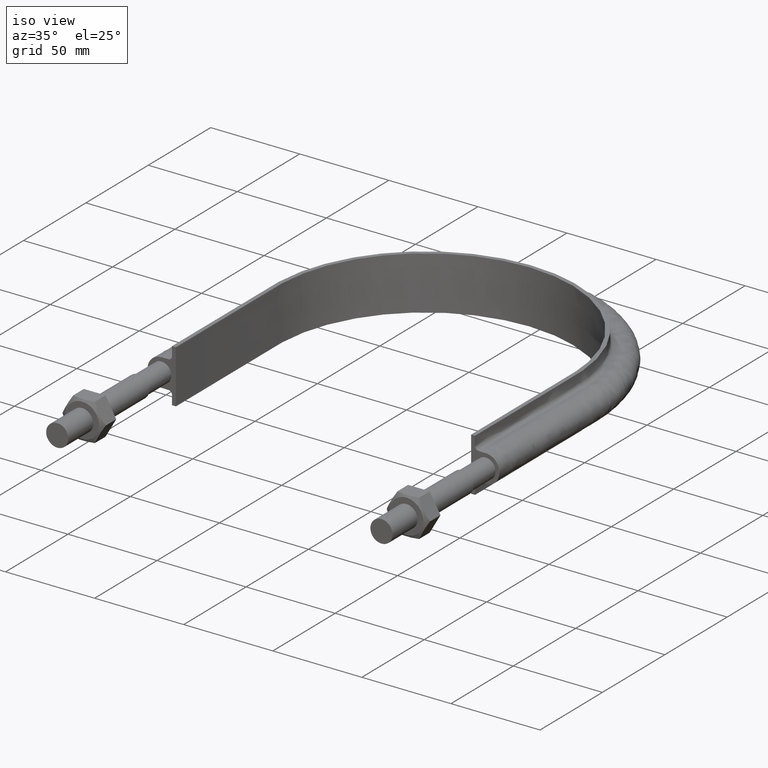
[diagram: clean part render]
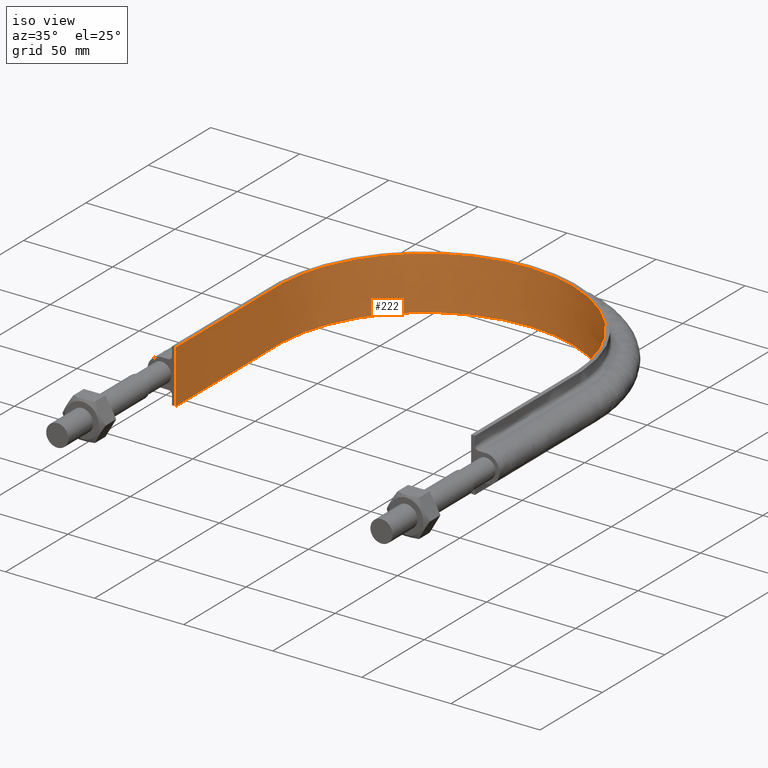
[diagram: same view with one face highlighted and labeled with its STEP entity id]
A machine part, iso view. The second image highlights one B-rep face of the part: STEP entity #222.
In plain terms, the highlighted face is a SurfaceOfExtrusion surface.
Its self-contained STEP definition (entity closure, byte-faithful):
#222 = ADVANCED_FACE( '', ( #268 ), #269, .T. );
#268 = FACE_OUTER_BOUND( '', #556, .T. );
#269 = SURFACE_OF_LINEAR_EXTRUSION( '', #557, #558 );
#556 = EDGE_LOOP( '', ( #1380, #1381, #1382, #1383 ) );
#557 = B_SPLINE_CURVE_WITH_KNOTS( '', 3, ( #1384, #1385, #1386, #1387, #1388, #1389, #1390, #1391, #1392, #1393, #1394, #1395, #1396, #1397, #1398, #1399, #1400 ), .UNSPECIFIED., .F., .F., ( 4, 3, 1, 1, 1, 1, 1, 1, 1, 3, 4 ), ( -10.0000000000000, -9.00000000000000, -8.00000000000000, -7.00000000000000, -6.00000000000000, -5.00000000000000, -4.00000000000000, -3.00000000000000, -2.00000000000000, -1.00000000000000, 0.000000000000000 ), .UNSPECIFIED. );
#558 = VECTOR( '', #1401, 1000.00000000000 );
#1380 = ORIENTED_EDGE( '', *, *, #1658, .F. );
#1381 = ORIENTED_EDGE( '', *, *, #1653, .F. );
#1382 = ORIENTED_EDGE( '', *, *, #1662, .T. );
#1383 = ORIENTED_EDGE( '', *, *, #1663, .T. );
#1384 = CARTESIAN_POINT( '', ( -82.8500000000000, 83.5000000000001, -278.469308654335 ) );
#1385 = CARTESIAN_POINT( '', ( -82.8500000000000, 110.716666666667, -278.469308654335 ) );
#1386 = CARTESIAN_POINT( '', ( -82.8500000000000, 137.933333333333, -278.469308654335 ) );
#1387 = CARTESIAN_POINT( '', ( -82.8500000000000, 165.150000000000, -278.469308654335 ) );
#1388 = CARTESIAN_POINT( '', ( -82.8500000000000, 175.979512005492, -278.469308654335 ) );
#1389 = CARTESIAN_POINT( '', ( -78.5361555605724, 197.687272457852, -278.469308654335 ) );
#1390 = CARTESIAN_POINT( '', ( -60.1089711493570, 225.257212617967, -278.469308654335 ) );
#1391 = CARTESIAN_POINT( '', ( -32.5307407698323, 243.686657998112, -278.469308654335 ) );
#1392 = CARTESIAN_POINT( '', ( 5.83899204915099E-014, 250.156671000944, -278.469308654335 ) );
#1393 = CARTESIAN_POINT( '', ( 32.5307407698323, 243.686657998112, -278.469308654335 ) );
#1394 = CARTESIAN_POINT( '', ( 60.1089711493571, 225.257212617967, -278.469308654335 ) );
#1395 = CARTESIAN_POINT( '', ( 78.5361555605725, 197.687272457852, -278.469308654335 ) );
#1396 = CARTESIAN_POINT( '', ( 82.8500000000000, 175.979512005492, -278.469308654335 ) );
#1397 = CARTESIAN_POINT( '', ( 82.8500000000000, 165.150000000000, -278.469308654335 ) );
#1398 = CARTESIAN_POINT( '', ( 82.8500000000000, 137.933333333333, -278.469308654335 ) );
#1399 = CARTESIAN_POINT( '', ( 82.8500000000000, 110.716666666667, -278.469308654335 ) );
#1400 = CARTESIAN_POINT( '', ( 82.8500000000000, 83.5000000000000, -278.469308654335 ) );
#1401 = DIRECTION( '', ( 0.000000000000000, 0.000000000000000, 1.00000000000000 ) );
#1653 = EDGE_CURVE( '', #1735, #1736, #1737, .T. );
#1658 = EDGE_CURVE( '', #1736, #1745, #1746, .T. );
#1662 = EDGE_CURVE( '', #1735, #1752, #1753, .T. );
#1663 = EDGE_CURVE( '', #1752, #1745, #1754, .T. );
#1735 = VERTEX_POINT( '', #1883 );
#1736 = VERTEX_POINT( '', #1884 );
#1737 = LINE( '', #1885, #1886 );
#1745 = VERTEX_POINT( '', #1936 );
#1746 = B_SPLINE_CURVE_WITH_KNOTS( '', 3, ( #1937, #1938, #1939, #1940, #1941, #1942, #1943, #1944, #1945, #1946, #1947, #1948, #1949, #1950, #1951, #1952, #1953 ), .UNSPECIFIED., .F., .F., ( 4, 3, 1, 1, 1, 1, 1, 1, 1, 3, 4 ), ( -10.0000000000000, -9.00000000000000, -8.00000000000000, -7.00000000000000, -6.00000000000000, -5.00000000000000, -4.00000000000000, -3.00000000000000, -2.00000000000000, -1.00000000000000, 0.000000000000000 ), .UNSPECIFIED. );
#1752 = VERTEX_POINT( '', #1986 );
#1753 = B_SPLINE_CURVE_WITH_KNOTS( '', 3, ( #1987, #1988, #1989, #1990, #1991, #1992, #1993, #1994, #1995, #1996, #1997, #1998, #1999, #2000, #2001, #2002, #2003 ), .UNSPECIFIED., .F., .F., ( 4, 3, 1, 1, 1, 1, 1, 1, 1, 3, 4 ), ( -10.0000000000000, -9.00000000000000, -8.00000000000000, -7.00000000000000, -6.00000000000000, -5.00000000000000, -4.00000000000000, -3.00000000000000, -2.00000000000000, -1.00000000000000, 0.000000000000000 ), .UNSPECIFIED. );
#1754 = LINE( '', #2004, #2005 );
#1883 = CARTESIAN_POINT( '', ( -82.8499999999999, 83.5000000000003, -15.0000000000000 ) );
#1884 = CARTESIAN_POINT( '', ( -82.8499999999999, 83.5000000000003, 15.0000000000000 ) );
#1885 = CARTESIAN_POINT( '', ( -82.8500000000000, 83.5000000000001, -278.469308654335 ) );
#1886 = VECTOR( '', #2385, 1000.00000000000 );
#1936 = CARTESIAN_POINT( '', ( 82.8500000000002, 83.5000000000003, 15.0000000000000 ) );
#1937 = CARTESIAN_POINT( '', ( -82.8500000000000, 83.5000000000001, 15.0000000000000 ) );
#1938 = CARTESIAN_POINT( '', ( -82.8500000000000, 110.716666666667, 15.0000000000000 ) );
#1939 = CARTESIAN_POINT( '', ( -82.8500000000000, 137.933333333333, 15.0000000000000 ) );
#1940 = CARTESIAN_POINT( '', ( -82.8500000000000, 165.150000000000, 15.0000000000000 ) );
#1941 = CARTESIAN_POINT( '', ( -82.8500000000000, 175.979512005492, 15.0000000000000 ) );
#1942 = CARTESIAN_POINT( '', ( -78.5361555605724, 197.687272457852, 15.0000000000000 ) );
#1943 = CARTESIAN_POINT( '', ( -60.1089711493570, 225.257212617967, 15.0000000000000 ) );
#1944 = CARTESIAN_POINT( '', ( -32.5307407698323, 243.686657998112, 15.0000000000000 ) );
#1945 = CARTESIAN_POINT( '', ( 5.83899204915099E-014, 250.156671000944, 15.0000000000000 ) );
#1946 = CARTESIAN_POINT( '', ( 32.5307407698323, 243.686657998112, 15.0000000000000 ) );
#1947 = CARTESIAN_POINT( '', ( 60.1089711493571, 225.257212617967, 15.0000000000000 ) );
#1948 = CARTESIAN_POINT( '', ( 78.5361555605725, 197.687272457852, 15.0000000000000 ) );
#1949 = CARTESIAN_POINT( '', ( 82.8500000000000, 175.979512005492, 15.0000000000000 ) );
#1950 = CARTESIAN_POINT( '', ( 82.8500000000000, 165.150000000000, 15.0000000000000 ) );
#1951 = CARTESIAN_POINT( '', ( 82.8500000000000, 137.933333333333, 15.0000000000000 ) );
#1952 = CARTESIAN_POINT( '', ( 82.8500000000000, 110.716666666667, 15.0000000000000 ) );
#1953 = CARTESIAN_POINT( '', ( 82.8500000000000, 83.5000000000000, 15.0000000000000 ) );
#1986 = CARTESIAN_POINT( '', ( 82.8500000000000, 83.5000000000000, -15.0000000000000 ) );
#1987 = CARTESIAN_POINT( '', ( -82.8500000000000, 83.5000000000001, -15.0000000000000 ) );
#1988 = CARTESIAN_POINT( '', ( -82.8500000000000, 110.716666666667, -15.0000000000000 ) );
#1989 = CARTESIAN_POINT( '', ( -82.8500000000000, 137.933333333333, -15.0000000000000 ) );
#1990 = CARTESIAN_POINT( '', ( -82.8500000000000, 165.150000000000, -15.0000000000000 ) );
#1991 = CARTESIAN_POINT( '', ( -82.8500000000000, 175.979512005492, -15.0000000000000 ) );
#1992 = CARTESIAN_POINT( '', ( -78.5361555605724, 197.687272457852, -15.0000000000000 ) );
#1993 = CARTESIAN_POINT( '', ( -60.1089711493570, 225.257212617967, -15.0000000000000 ) );
#1994 = CARTESIAN_POINT( '', ( -32.5307407698323, 243.686657998112, -15.0000000000000 ) );
#1995 = CARTESIAN_POINT( '', ( 5.83899204915099E-014, 250.156671000944, -15.0000000000000 ) );
#1996 = CARTESIAN_POINT( '', ( 32.5307407698323, 243.686657998112, -15.0000000000000 ) );
#1997 = CARTESIAN_POINT( '', ( 60.1089711493571, 225.257212617967, -15.0000000000000 ) );
#1998 = CARTESIAN_POINT( '', ( 78.5361555605725, 197.687272457852, -15.0000000000000 ) );
#1999 = CARTESIAN_POINT( '', ( 82.8500000000000, 175.979512005492, -15.0000000000000 ) );
#2000 = CARTESIAN_POINT( '', ( 82.8500000000000, 165.150000000000, -15.0000000000000 ) );
#2001 = CARTESIAN_POINT( '', ( 82.8500000000000, 137.933333333333, -15.0000000000000 ) );
#2002 = CARTESIAN_POINT( '', ( 82.8500000000000, 110.716666666667, -15.0000000000000 ) );
#2003 = CARTESIAN_POINT( '', ( 82.8500000000000, 83.5000000000000, -15.0000000000000 ) );
#2004 = CARTESIAN_POINT( '', ( 82.8500000000000, 83.5000000000000, -278.469308654335 ) );
#2005 = VECTOR( '', #2389, 1000.00000000000 );
#2385 = DIRECTION( '', ( 0.000000000000000, 0.000000000000000, 1.00000000000000 ) );
#2389 = DIRECTION( '', ( 0.000000000000000, 0.000000000000000, 1.00000000000000 ) );